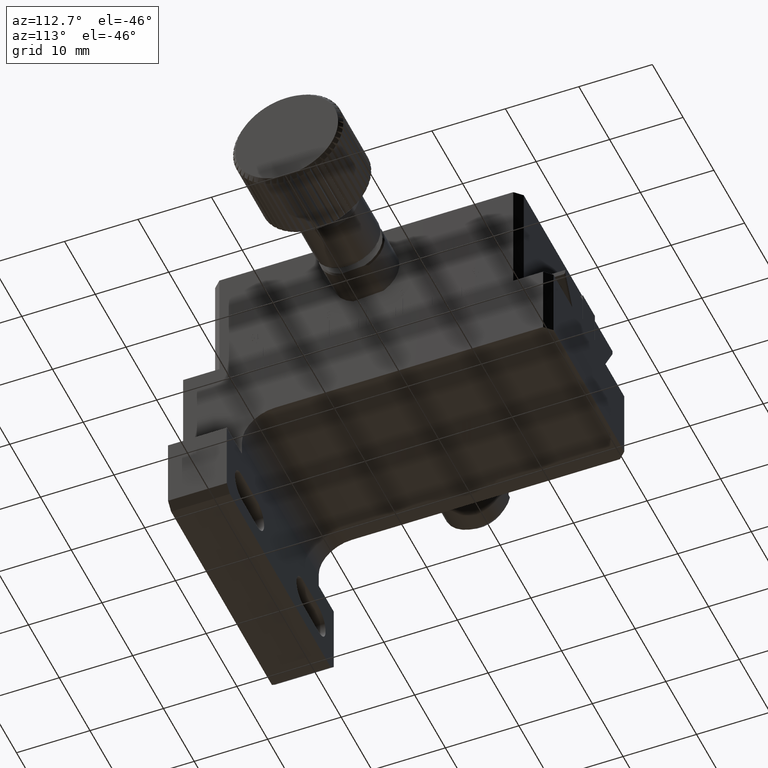
[diagram: clean part render]
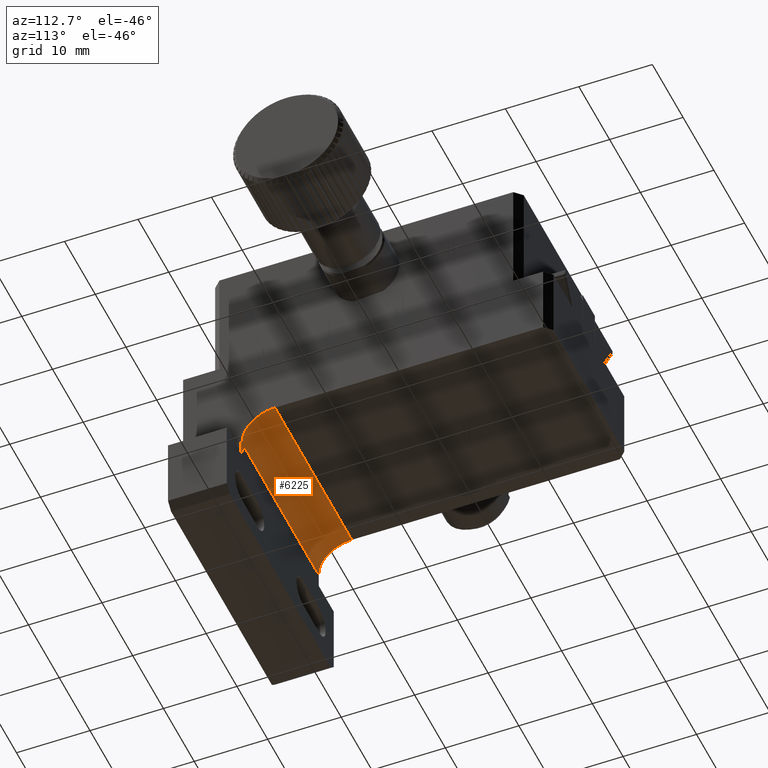
[diagram: same view with one face highlighted and labeled with its STEP entity id]
A machine part, auxiliary view. The second image highlights one B-rep face of the part: STEP entity #6225.
In plain terms, the highlighted cylindrical surface (edge-blend (fillet) strip) has radius 4.5 mm, axis along (-1, -0, 0).
Its self-contained STEP definition (entity closure, byte-faithful):
#1803 = DIRECTION ( 'NONE',  ( 0.000000000000000000, 0.000000000000000000, 1.000000000000000000 ) ) ;
#4883 = ORIENTED_EDGE ( 'NONE', *, *, #91064, .T. ) ;
#6225 = ADVANCED_FACE ( 'NONE', ( #93638 ), #47694, .F. ) ;
#8202 = VECTOR ( 'NONE', #39570, 1000.000000000000000 ) ;
#9210 = VECTOR ( 'NONE', #93862, 1000.000000000000000 ) ;
#12420 = EDGE_CURVE ( 'NONE', #90377, #39202, #94818, .T. ) ;
#12651 = CARTESIAN_POINT ( 'NONE',  ( 51.21116878375735126, 26.13550279078405225, 58.95689688579011545 ) ) ;
#18077 = EDGE_LOOP ( 'NONE', ( #110960, #24045, #76215, #4883 ) ) ;
#18462 = CARTESIAN_POINT ( 'NONE',  ( 51.21116878375735126, 21.63550279078405580, 58.95689688579008703 ) ) ;
#19048 = DIRECTION ( 'NONE',  ( -1.000000000000000000, -1.282749433769087582E-30, 1.224646799147353207E-16 ) ) ;
#23830 = DIRECTION ( 'NONE',  ( 1.000000000000000000, 1.282749433769087582E-30, -1.224646799147353207E-16 ) ) ;
#24045 = ORIENTED_EDGE ( 'NONE', *, *, #12420, .T. ) ;
#24422 = CARTESIAN_POINT ( 'NONE',  ( 76.21116878375734416, 26.13550279078405225, 58.95689688579011545 ) ) ;
#34975 = AXIS2_PLACEMENT_3D ( 'NONE', #24422, #23830, #89660 ) ;
#36978 = AXIS2_PLACEMENT_3D ( 'NONE', #119372, #19048, #54706 ) ;
#37352 = VERTEX_POINT ( 'NONE', #97620 ) ;
#39202 = VERTEX_POINT ( 'NONE', #108764 ) ;
#39570 = DIRECTION ( 'NONE',  ( 1.000000000000000000, 1.282749433769087582E-30, -1.224646799147353207E-16 ) ) ;
#39858 = DIRECTION ( 'NONE',  ( -1.000000000000000000, -1.282749433769087582E-30, 1.224646799147353207E-16 ) ) ;
#47694 = CYLINDRICAL_SURFACE ( 'NONE', #89063, 4.500000000000003553 ) ;
#54706 = DIRECTION ( 'NONE',  ( 0.000000000000000000, 0.000000000000000000, 1.000000000000000000 ) ) ;
#56168 = CIRCLE ( 'NONE', #34975, 4.500000000000003553 ) ;
#58191 = LINE ( 'NONE', #105302, #9210 ) ;
#67578 = EDGE_CURVE ( 'NONE', #39202, #98810, #58191, .T. ) ;
#67948 = CARTESIAN_POINT ( 'NONE',  ( 51.21116878375735126, 21.63550279078404515, 58.95689688579006571 ) ) ;
#74700 = CARTESIAN_POINT ( 'NONE',  ( 76.21116878375734416, 26.13550279078399896, 63.45689688579012255 ) ) ;
#76215 = ORIENTED_EDGE ( 'NONE', *, *, #67578, .T. ) ;
#89063 = AXIS2_PLACEMENT_3D ( 'NONE', #12651, #39858, #1803 ) ;
#89660 = DIRECTION ( 'NONE',  ( 0.000000000000000000, -1.156482317317870502E-14, 1.000000000000000000 ) ) ;
#90377 = VERTEX_POINT ( 'NONE', #18462 ) ;
#91064 = EDGE_CURVE ( 'NONE', #98810, #37352, #56168, .T. ) ;
#93638 = FACE_OUTER_BOUND ( 'NONE', #18077, .T. ) ;
#93862 = DIRECTION ( 'NONE',  ( 1.000000000000000000, 1.282749433769087582E-30, -1.224646799147353207E-16 ) ) ;
#94818 = CIRCLE ( 'NONE', #36978, 4.500000000000003553 ) ;
#95158 = LINE ( 'NONE', #67948, #8202 ) ;
#95193 = EDGE_CURVE ( 'NONE', #90377, #37352, #95158, .T. ) ;
#97620 = CARTESIAN_POINT ( 'NONE',  ( 76.21116878375734416, 21.63550279078404870, 58.95689688579008703 ) ) ;
#98810 = VERTEX_POINT ( 'NONE', #74700 ) ;
#105302 = CARTESIAN_POINT ( 'NONE',  ( 51.21116878375735126, 26.13550279078399896, 63.45689688579012255 ) ) ;
#108764 = CARTESIAN_POINT ( 'NONE',  ( 51.21116878375735126, 26.13550279078399896, 63.45689688579012255 ) ) ;
#110960 = ORIENTED_EDGE ( 'NONE', *, *, #95193, .F. ) ;
#119372 = CARTESIAN_POINT ( 'NONE',  ( 51.21116878375735126, 26.13550279078405225, 58.95689688579011545 ) ) ;